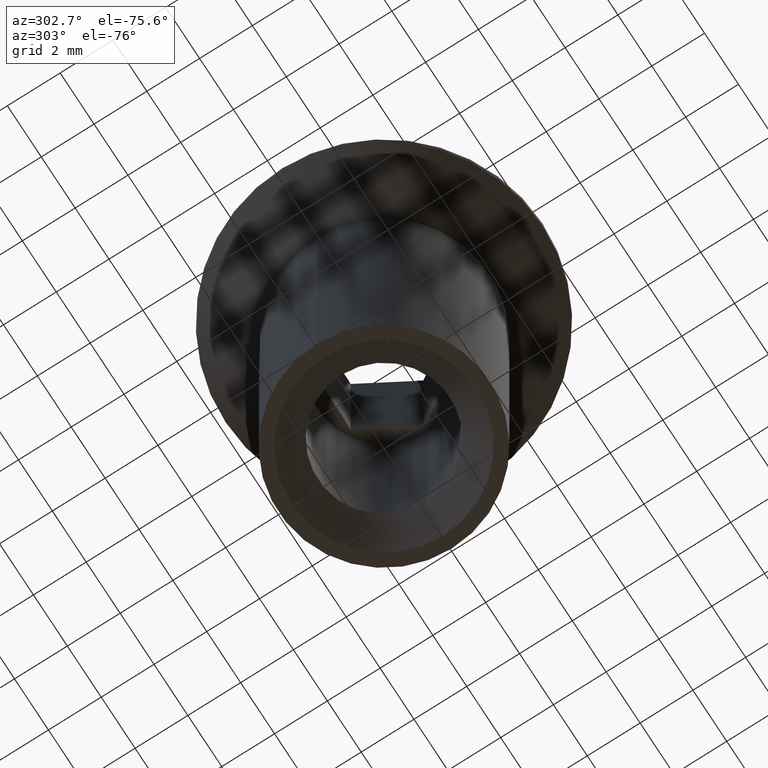
[diagram: clean part render]
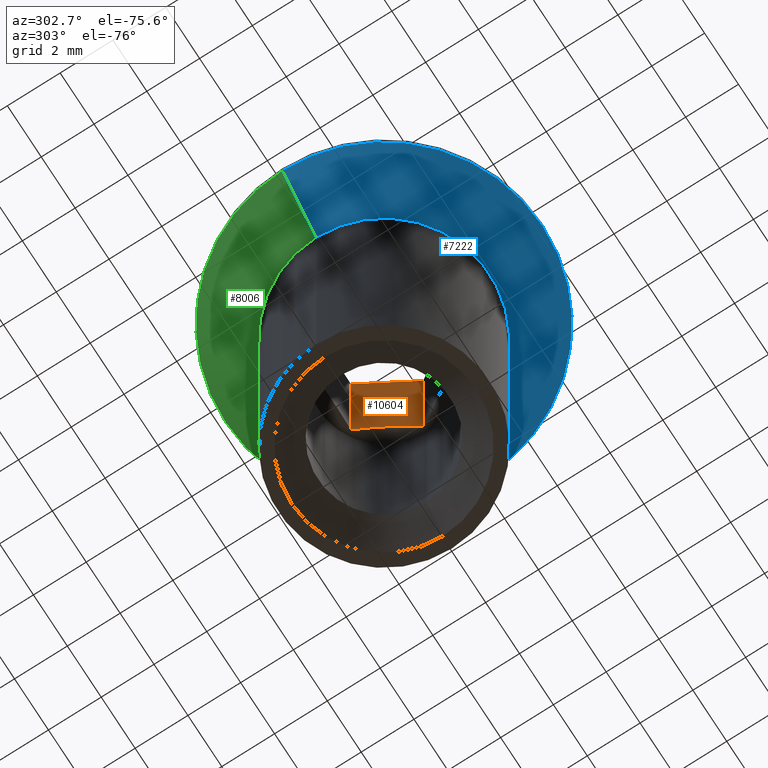
[diagram: same view with three faces highlighted in distinct colors, each labeled with its STEP entity id]
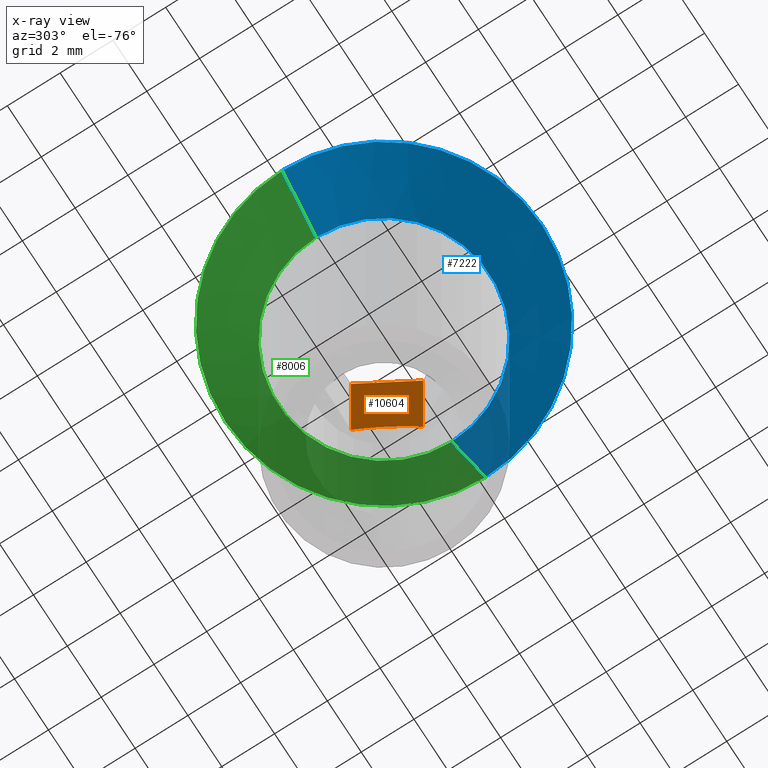
[diagram: x-ray of the same camera — body ghosted, the three highlighted faces saturated]
A machine part, auxiliary view with three faces highlighted in distinct colors.
The next image is the same camera in x-ray (body ghosted, the three faces saturated) — at least one of them is partly hidden behind the body in this view.
Their STEP definitions:

[orange] entity #10604 — the highlighted planar face has unit normal (0.866, 0.5, 0).
#70 = CARTESIAN_POINT ( 'NONE',  ( 1.342923420133616700, 1.673988405654408300, 2.227619104253199200 ) ) ;
#243 = VERTEX_POINT ( 'NONE', #12927 ) ;
#788 = ORIENTED_EDGE ( 'NONE', *, *, #7338, .T. ) ;
#1052 = EDGE_CURVE ( 'NONE', #13434, #10523, #7729, .T. ) ;
#1848 = EDGE_CURVE ( 'NONE', #243, #10523, #10038, .T. ) ;
#2255 = FACE_OUTER_BOUND ( 'NONE', #9548, .T. ) ;
#2426 = CARTESIAN_POINT ( 'NONE',  ( 1.829076285005397700, 0.8319469434513173700, 2.300580385953780100 ) ) ;
#2666 = DIRECTION ( 'NONE',  ( -0.0000000000000000000, -0.0000000000000000000, 1.000000000000000000 ) ) ;
#3663 = CARTESIAN_POINT ( 'NONE',  ( 2.120048896595126700, 0.3279675965669025500, 2.217946421453497000 ) ) ;
#4027 = ORIENTED_EDGE ( 'NONE', *, *, #1848, .T. ) ;
#4465 = CARTESIAN_POINT ( 'NONE',  ( 1.927354523524255300, 0.6617240410582834200, 2.282781369526453400 ) ) ;
#4591 = ORIENTED_EDGE ( 'NONE', *, *, #1052, .F. ) ;
#4638 = CARTESIAN_POINT ( 'NONE',  ( 1.154700538379251200, 1.999999999999998200, 2.114523387004871900 ) ) ;
#4986 = VERTEX_POINT ( 'NONE', #10035 ) ;
#5038 = DIRECTION ( 'NONE',  ( 0.8660254037844386000, 0.5000000000000003300, 0.0000000000000000000 ) ) ;
#5716 = CARTESIAN_POINT ( 'NONE',  ( 1.154700538379251200, 1.999999999999998200, 2.114523387004871900 ) ) ;
#6119 = CARTESIAN_POINT ( 'NONE',  ( 1.154700538379251200, 1.999999999999998200, 8.000000000000000000 ) ) ;
#6223 = PLANE ( 'NONE',  #12201 ) ;
#7338 = EDGE_CURVE ( 'NONE', #4986, #243, #13338, .T. ) ;
#7559 = DIRECTION ( 'NONE',  ( -0.5000000000000002200, 0.8660254037844384900, 0.0000000000000000000 ) ) ;
#7729 = LINE ( 'NONE', #13688, #10627 ) ;
#7829 = EDGE_CURVE ( 'NONE', #13434, #4986, #8132, .T. ) ;
#8132 = B_SPLINE_CURVE_WITH_KNOTS ( 'NONE', 3,
 ( #5716, #70, #11839, #2426, #4465, #3663, #14302, #8287 ),
 .UNSPECIFIED., .F., .F.,
 ( 4, 2, 2, 4 ),
 ( 2.386335897418328400E-007, 0.001167194647185767300, 0.001750672653983779900, 0.002334150660781792700 ),
 .UNSPECIFIED. ) ;
#8247 = DIRECTION ( 'NONE',  ( -0.0000000000000000000, -0.0000000000000000000, 1.000000000000000000 ) ) ;
#8287 = CARTESIAN_POINT ( 'NONE',  ( 2.309401076758503400, -1.531337250869051600E-015, 2.114523387004870500 ) ) ;
#8532 = CARTESIAN_POINT ( 'NONE',  ( 2.309401076758503400, -1.532772604768279400E-015, 8.000000000000000000 ) ) ;
#8796 = CARTESIAN_POINT ( 'NONE',  ( 2.309401076758503400, -1.532772604768279400E-015, -8.000000000000000000 ) ) ;
#8872 = VECTOR ( 'NONE', #14604, 1000.000000000000100 ) ;
#9503 = VECTOR ( 'NONE', #8247, 1000.000000000000000 ) ;
#9548 = EDGE_LOOP ( 'NONE', ( #4591, #14588, #788, #4027 ) ) ;
#10035 = CARTESIAN_POINT ( 'NONE',  ( 2.309401076758503400, -1.531337250869051600E-015, 2.114523387004870500 ) ) ;
#10038 = LINE ( 'NONE', #8532, #8872 ) ;
#10523 = VERTEX_POINT ( 'NONE', #6119 ) ;
#10604 = ADVANCED_FACE ( 'NONE', ( #2255 ), #6223, .F. ) ;
#10627 = VECTOR ( 'NONE', #2666, 1000.000000000000000 ) ;
#11839 = CARTESIAN_POINT ( 'NONE',  ( 1.534163732629752800, 1.342750467955750300, 2.300127209249986500 ) ) ;
#12201 = AXIS2_PLACEMENT_3D ( 'NONE', #8796, #5038, #7559 ) ;
#12927 = CARTESIAN_POINT ( 'NONE',  ( 2.309401076758503400, -1.532772604768279400E-015, 8.000000000000000000 ) ) ;
#13338 = LINE ( 'NONE', #14064, #9503 ) ;
#13434 = VERTEX_POINT ( 'NONE', #4638 ) ;
#13688 = CARTESIAN_POINT ( 'NONE',  ( 1.154700538379251200, 1.999999999999998200, -8.000000000000000000 ) ) ;
#14064 = CARTESIAN_POINT ( 'NONE',  ( 2.309401076758503400, -1.532772604768279400E-015, -8.000000000000000000 ) ) ;
#14302 = CARTESIAN_POINT ( 'NONE',  ( 2.215151082630578900, 0.1632457784426320500, 2.171154496821008400 ) ) ;
#14588 = ORIENTED_EDGE ( 'NONE', *, *, #7829, .T. ) ;
#14604 = DIRECTION ( 'NONE',  ( -0.5000000000000002200, 0.8660254037844384900, 0.0000000000000000000 ) ) ;

[blue] entity #7222 — the highlighted conical surface has half-angle 45 deg.
#77 = DIRECTION ( 'NONE',  ( -0.0000000000000000000, -0.0000000000000000000, -1.000000000000000000 ) ) ;
#103 = EDGE_CURVE ( 'NONE', #10353, #10577, #9858, .T. ) ;
#527 = VERTEX_POINT ( 'NONE', #4252 ) ;
#1189 = CARTESIAN_POINT ( 'NONE',  ( 4.000000000000000900, -1.898202538678397600E-015, 5.700000000000000200 ) ) ;
#1490 = AXIS2_PLACEMENT_3D ( 'NONE', #2538, #77, #11048 ) ;
#1882 = ORIENTED_EDGE ( 'NONE', *, *, #14557, .F. ) ;
#2343 = VECTOR ( 'NONE', #7958, 1000.000000000000000 ) ;
#2538 = CARTESIAN_POINT ( 'NONE',  ( 0.0000000000000000000, -1.898202538678397600E-015, 7.699999999999991300 ) ) ;
#2558 = CARTESIAN_POINT ( 'NONE',  ( 6.000000000000000000, -1.163414459189985700E-015, 7.699999999999991300 ) ) ;
#2694 = CIRCLE ( 'NONE', #13427, 4.000000000000000900 ) ;
#3079 = CARTESIAN_POINT ( 'NONE',  ( -4.000000000000000900, -1.408343819019456200E-015, 5.700000000000000200 ) ) ;
#3412 = DIRECTION ( 'NONE',  ( -1.000000000000000000, 0.0000000000000000000, 0.0000000000000000000 ) ) ;
#3508 = EDGE_CURVE ( 'NONE', #10353, #527, #2694, .T. ) ;
#4252 = CARTESIAN_POINT ( 'NONE',  ( -4.000000000000000900, -1.285879139104720800E-015, 5.700000000000000200 ) ) ;
#4948 = CARTESIAN_POINT ( 'NONE',  ( -6.000000000000000000, -1.898202538678397600E-015, 7.699999999999991300 ) ) ;
#5150 = DIRECTION ( 'NONE',  ( 0.0000000000000000000, 0.0000000000000000000, 1.000000000000000000 ) ) ;
#5341 = ORIENTED_EDGE ( 'NONE', *, *, #103, .T. ) ;
#5984 = EDGE_CURVE ( 'NONE', #10577, #14799, #7007, .T. ) ;
#6384 = CARTESIAN_POINT ( 'NONE',  ( 0.0000000000000000000, -1.898202538678397600E-015, 5.700000000000000200 ) ) ;
#6994 = CONICAL_SURFACE ( 'NONE', #13945, 4.000000000000000900, 0.7853981633974502800 ) ;
#7007 = CIRCLE ( 'NONE', #1490, 6.000000000000000000 ) ;
#7011 = CARTESIAN_POINT ( 'NONE',  ( 0.0000000000000000000, -1.898202538678397600E-015, 5.700000000000000200 ) ) ;
#7222 = ADVANCED_FACE ( 'NONE', ( #11614 ), #6994, .T. ) ;
#7877 = ORIENTED_EDGE ( 'NONE', *, *, #3508, .F. ) ;
#7958 = DIRECTION ( 'NONE',  ( -0.7071067811865489100, 8.659560562354950100E-017, 0.7071067811865462400 ) ) ;
#8774 = EDGE_LOOP ( 'NONE', ( #1882, #7877, #5341, #15073 ) ) ;
#9858 = LINE ( 'NONE', #1189, #14457 ) ;
#9970 = DIRECTION ( 'NONE',  ( 0.7071067811865489100, 0.0000000000000000000, 0.7071067811865462400 ) ) ;
#10353 = VERTEX_POINT ( 'NONE', #14199 ) ;
#10577 = VERTEX_POINT ( 'NONE', #2558 ) ;
#11048 = DIRECTION ( 'NONE',  ( -1.000000000000000000, 0.0000000000000000000, 0.0000000000000000000 ) ) ;
#11144 = LINE ( 'NONE', #3079, #2343 ) ;
#11614 = FACE_OUTER_BOUND ( 'NONE', #8774, .T. ) ;
#11968 = DIRECTION ( 'NONE',  ( -0.0000000000000000000, -0.0000000000000000000, -1.000000000000000000 ) ) ;
#13427 = AXIS2_PLACEMENT_3D ( 'NONE', #7011, #11968, #3412 ) ;
#13945 = AXIS2_PLACEMENT_3D ( 'NONE', #6384, #5150, #15090 ) ;
#14199 = CARTESIAN_POINT ( 'NONE',  ( 4.000000000000000900, -1.898202538678397600E-015, 5.700000000000000200 ) ) ;
#14457 = VECTOR ( 'NONE', #9970, 1000.000000000000000 ) ;
#14557 = EDGE_CURVE ( 'NONE', #527, #14799, #11144, .T. ) ;
#14799 = VERTEX_POINT ( 'NONE', #4948 ) ;
#15073 = ORIENTED_EDGE ( 'NONE', *, *, #5984, .T. ) ;
#15090 = DIRECTION ( 'NONE',  ( 1.000000000000000000, 0.0000000000000000000, 0.0000000000000000000 ) ) ;

[green] entity #8006 — the highlighted conical surface has half-angle 45 deg.
#103 = EDGE_CURVE ( 'NONE', #10353, #10577, #9858, .T. ) ;
#527 = VERTEX_POINT ( 'NONE', #4252 ) ;
#1189 = CARTESIAN_POINT ( 'NONE',  ( 4.000000000000000900, -1.898202538678397600E-015, 5.700000000000000200 ) ) ;
#1721 = DIRECTION ( 'NONE',  ( -0.0000000000000000000, -0.0000000000000000000, -1.000000000000000000 ) ) ;
#2343 = VECTOR ( 'NONE', #7958, 1000.000000000000000 ) ;
#2398 = ORIENTED_EDGE ( 'NONE', *, *, #14557, .T. ) ;
#2558 = CARTESIAN_POINT ( 'NONE',  ( 6.000000000000000000, -1.163414459189985700E-015, 7.699999999999991300 ) ) ;
#3079 = CARTESIAN_POINT ( 'NONE',  ( -4.000000000000000900, -1.408343819019456200E-015, 5.700000000000000200 ) ) ;
#4252 = CARTESIAN_POINT ( 'NONE',  ( -4.000000000000000900, -1.285879139104720800E-015, 5.700000000000000200 ) ) ;
#4760 = CIRCLE ( 'NONE', #12723, 6.000000000000000000 ) ;
#4948 = CARTESIAN_POINT ( 'NONE',  ( -6.000000000000000000, -1.898202538678397600E-015, 7.699999999999991300 ) ) ;
#6490 = DIRECTION ( 'NONE',  ( -0.0000000000000000000, -0.0000000000000000000, -1.000000000000000000 ) ) ;
#7128 = AXIS2_PLACEMENT_3D ( 'NONE', #10388, #12599, #15062 ) ;
#7425 = ORIENTED_EDGE ( 'NONE', *, *, #103, .F. ) ;
#7818 = CARTESIAN_POINT ( 'NONE',  ( 0.0000000000000000000, -1.898202538678397600E-015, 7.699999999999991300 ) ) ;
#7958 = DIRECTION ( 'NONE',  ( -0.7071067811865489100, 8.659560562354950100E-017, 0.7071067811865462400 ) ) ;
#8006 = ADVANCED_FACE ( 'NONE', ( #15630 ), #10264, .T. ) ;
#8852 = ORIENTED_EDGE ( 'NONE', *, *, #9701, .F. ) ;
#9701 = EDGE_CURVE ( 'NONE', #527, #10353, #12918, .T. ) ;
#9858 = LINE ( 'NONE', #1189, #14457 ) ;
#9970 = DIRECTION ( 'NONE',  ( 0.7071067811865489100, 0.0000000000000000000, 0.7071067811865462400 ) ) ;
#10201 = CARTESIAN_POINT ( 'NONE',  ( 0.0000000000000000000, -1.898202538678397600E-015, 5.700000000000000200 ) ) ;
#10264 = CONICAL_SURFACE ( 'NONE', #7128, 4.000000000000000900, 0.7853981633974502800 ) ;
#10320 = EDGE_LOOP ( 'NONE', ( #8852, #2398, #14539, #7425 ) ) ;
#10353 = VERTEX_POINT ( 'NONE', #14199 ) ;
#10388 = CARTESIAN_POINT ( 'NONE',  ( 0.0000000000000000000, -1.898202538678397600E-015, 5.700000000000000200 ) ) ;
#10577 = VERTEX_POINT ( 'NONE', #2558 ) ;
#10761 = EDGE_CURVE ( 'NONE', #14799, #10577, #4760, .T. ) ;
#11144 = LINE ( 'NONE', #3079, #2343 ) ;
#11543 = DIRECTION ( 'NONE',  ( -1.000000000000000000, 0.0000000000000000000, 0.0000000000000000000 ) ) ;
#12514 = AXIS2_PLACEMENT_3D ( 'NONE', #10201, #6490, #15024 ) ;
#12599 = DIRECTION ( 'NONE',  ( 0.0000000000000000000, 0.0000000000000000000, 1.000000000000000000 ) ) ;
#12723 = AXIS2_PLACEMENT_3D ( 'NONE', #7818, #1721, #11543 ) ;
#12918 = CIRCLE ( 'NONE', #12514, 4.000000000000000900 ) ;
#14199 = CARTESIAN_POINT ( 'NONE',  ( 4.000000000000000900, -1.898202538678397600E-015, 5.700000000000000200 ) ) ;
#14457 = VECTOR ( 'NONE', #9970, 1000.000000000000000 ) ;
#14539 = ORIENTED_EDGE ( 'NONE', *, *, #10761, .T. ) ;
#14557 = EDGE_CURVE ( 'NONE', #527, #14799, #11144, .T. ) ;
#14799 = VERTEX_POINT ( 'NONE', #4948 ) ;
#15024 = DIRECTION ( 'NONE',  ( -1.000000000000000000, 0.0000000000000000000, 0.0000000000000000000 ) ) ;
#15062 = DIRECTION ( 'NONE',  ( 1.000000000000000000, 0.0000000000000000000, 0.0000000000000000000 ) ) ;
#15630 = FACE_OUTER_BOUND ( 'NONE', #10320, .T. ) ;